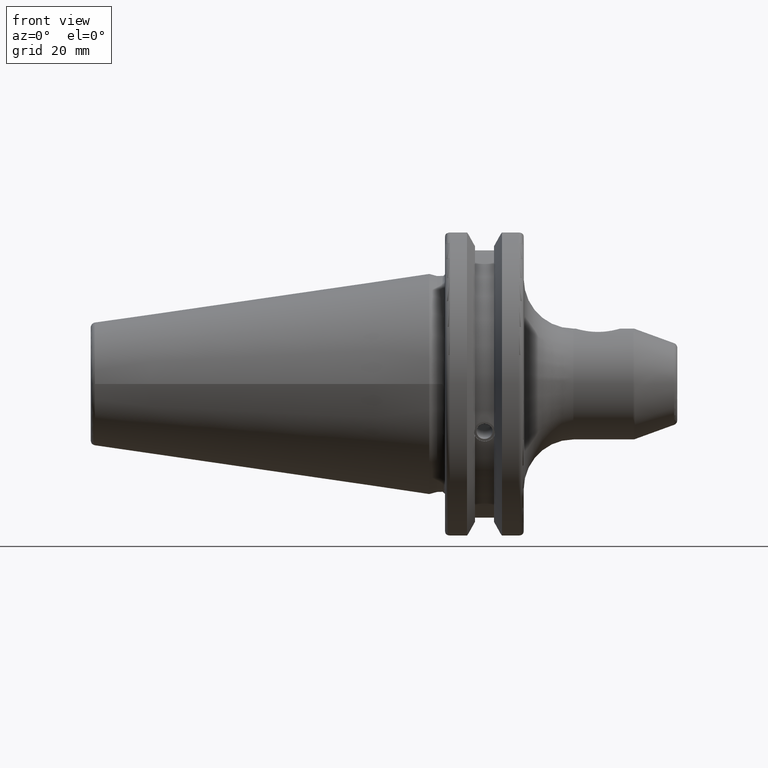
[diagram: clean part render]
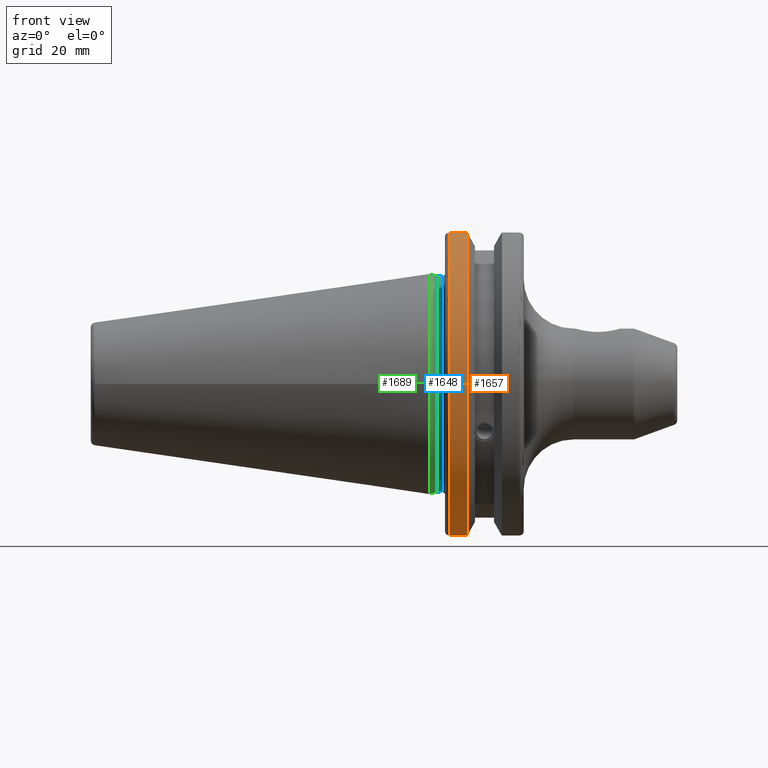
[diagram: same view with three faces highlighted in distinct colors, each labeled with its STEP entity id]
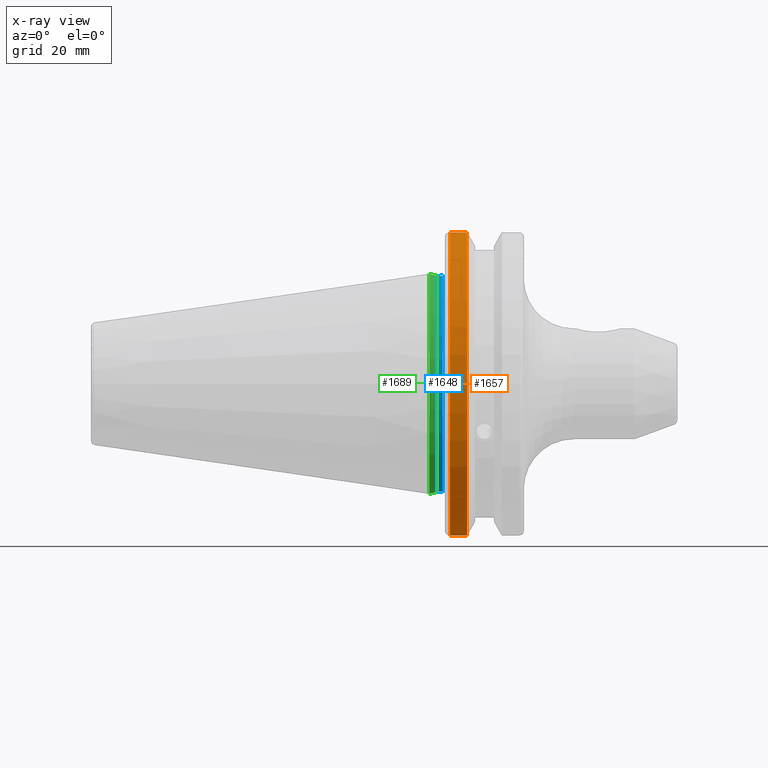
[diagram: x-ray of the same camera — body ghosted, the three highlighted faces saturated]
A machine part, front view with three faces highlighted in distinct colors.
The next image is the same camera in x-ray (body ghosted, the three faces saturated) — at least one of them is partly hidden behind the body in this view.
Their STEP definitions:

[orange] entity #1657 — the highlighted cylindrical surface (partial cylindrical patch) has radius 31.75 mm, axis along (1, 0, 0).
#155=CIRCLE('',#1847,31.75);
#156=CIRCLE('',#1850,31.75);
#240=FACE_OUTER_BOUND('',#346,.T.);
#346=EDGE_LOOP('',(#1413,#1414,#1415,#1416));
#460=LINE('',#3256,#559);
#461=LINE('',#3262,#560);
#559=VECTOR('',#2249,10.);
#560=VECTOR('',#2252,10.);
#789=VERTEX_POINT('',#3235);
#790=VERTEX_POINT('',#3244);
#791=VERTEX_POINT('',#3255);
#792=VERTEX_POINT('',#3261);
#1013=EDGE_CURVE('',#789,#790,#155,.T.);
#1015=EDGE_CURVE('',#790,#791,#460,.T.);
#1017=EDGE_CURVE('',#792,#789,#461,.T.);
#1018=EDGE_CURVE('',#791,#792,#156,.T.);
#1413=ORIENTED_EDGE('',*,*,#1013,.F.);
#1414=ORIENTED_EDGE('',*,*,#1017,.F.);
#1415=ORIENTED_EDGE('',*,*,#1018,.F.);
#1416=ORIENTED_EDGE('',*,*,#1015,.F.);
#1593=CYLINDRICAL_SURFACE('',#1849,31.75);
#1657=ADVANCED_FACE('',(#240),#1593,.T.);
#1847=AXIS2_PLACEMENT_3D('',#3245,#2245,#2246);
#1849=AXIS2_PLACEMENT_3D('',#3260,#2250,#2251);
#1850=AXIS2_PLACEMENT_3D('',#3263,#2253,#2254);
#2245=DIRECTION('center_axis',(-1.,0.,0.));
#2246=DIRECTION('ref_axis',(0.,-1.,1.60812264967664E-16));
#2249=DIRECTION('',(1.,0.,0.));
#2250=DIRECTION('center_axis',(1.,0.,0.));
#2251=DIRECTION('ref_axis',(0.,-1.,1.22464679914735E-16));
#2252=DIRECTION('',(-1.,0.,0.));
#2253=DIRECTION('center_axis',(1.,0.,0.));
#2254=DIRECTION('ref_axis',(0.,0.,-1.));
#3235=CARTESIAN_POINT('',(4.175,-8.67204822802685,-30.5427254764662));
#3244=CARTESIAN_POINT('',(4.175,-8.67204822802685,30.5427254764662));
#3245=CARTESIAN_POINT('Origin',(4.175,0.,0.));
#3255=CARTESIAN_POINT('',(7.60793323092436,-8.67204822802685,30.5427254764662));
#3256=CARTESIAN_POINT('',(5.39146661546218,-8.67204822802685,30.5427254764662));
#3260=CARTESIAN_POINT('Origin',(5.39146661546218,0.,0.));
#3261=CARTESIAN_POINT('',(7.60793323092436,-8.67204822802685,-30.5427254764662));
#3262=CARTESIAN_POINT('',(5.39146661546218,-8.67204822802685,-30.5427254764662));
#3263=CARTESIAN_POINT('Origin',(7.60793323092436,0.,0.));

[blue] entity #1648 — the highlighted cylindrical surface (bore or boss wall) has radius 21.8 mm, axis along (1, 0, 0).
#146=CIRCLE('',#1829,21.8);
#149=CIRCLE('',#1832,21.8);
#152=CIRCLE('',#1837,21.8);
#231=FACE_OUTER_BOUND('',#337,.T.);
#337=EDGE_LOOP('',(#1346,#1347,#1348,#1349,#1350));
#446=LINE('',#3107,#545);
#545=VECTOR('',#2211,21.8);
#755=VERTEX_POINT('',#3073);
#756=VERTEX_POINT('',#3074);
#770=VERTEX_POINT('',#3106);
#964=EDGE_CURVE('',#755,#756,#146,.T.);
#967=EDGE_CURVE('',#756,#755,#149,.T.);
#980=EDGE_CURVE('',#755,#770,#446,.T.);
#981=EDGE_CURVE('',#770,#770,#152,.T.);
#1346=ORIENTED_EDGE('',*,*,#964,.F.);
#1347=ORIENTED_EDGE('',*,*,#980,.T.);
#1348=ORIENTED_EDGE('',*,*,#981,.T.);
#1349=ORIENTED_EDGE('',*,*,#980,.F.);
#1350=ORIENTED_EDGE('',*,*,#967,.F.);
#1592=CYLINDRICAL_SURFACE('',#1836,21.8);
#1648=ADVANCED_FACE('',(#231),#1592,.T.);
#1829=AXIS2_PLACEMENT_3D('',#3075,#2185,#2186);
#1832=AXIS2_PLACEMENT_3D('',#3079,#2191,#2192);
#1836=AXIS2_PLACEMENT_3D('',#3105,#2209,#2210);
#1837=AXIS2_PLACEMENT_3D('',#3108,#2212,#2213);
#2185=DIRECTION('center_axis',(1.,0.,0.));
#2186=DIRECTION('ref_axis',(0.,-1.,1.83697019872103E-16));
#2191=DIRECTION('center_axis',(1.,0.,0.));
#2192=DIRECTION('ref_axis',(0.,-1.,1.83697019872103E-16));
#2209=DIRECTION('center_axis',(1.,0.,0.));
#2210=DIRECTION('ref_axis',(0.,1.,0.));
#2211=DIRECTION('',(-1.,0.,0.));
#2212=DIRECTION('center_axis',(1.,0.,0.));
#2213=DIRECTION('ref_axis',(0.,0.,-1.));
#3073=CARTESIAN_POINT('',(2.675,-21.8,-2.66973002214123E-15));
#3074=CARTESIAN_POINT('',(2.675,-2.66973002214123E-15,21.8));
#3075=CARTESIAN_POINT('Origin',(2.675,0.,0.));
#3079=CARTESIAN_POINT('Origin',(2.675,0.,0.));
#3105=CARTESIAN_POINT('Origin',(2.38056079660838,0.,0.));
#3106=CARTESIAN_POINT('',(1.58612159321676,-21.8,-2.66973002214123E-15));
#3107=CARTESIAN_POINT('',(2.38056079660838,-21.8,-2.66973002214123E-15));
#3108=CARTESIAN_POINT('Origin',(1.58612159321676,0.,0.));

[green] entity #1689 — the highlighted conical surface has half-angle 15 deg.
#44=CONICAL_SURFACE('',#1899,22.0125,0.261799387799148);
#152=CIRCLE('',#1837,21.8);
#163=CIRCLE('',#1863,22.225);
#272=FACE_OUTER_BOUND('',#381,.T.);
#381=EDGE_LOOP('',(#1554,#1555,#1556,#1557));
#482=LINE('',#3382,#581);
#581=VECTOR('',#2373,22.0125);
#770=VERTEX_POINT('',#3106);
#800=VERTEX_POINT('',#3309);
#981=EDGE_CURVE('',#770,#770,#152,.T.);
#1030=EDGE_CURVE('',#800,#800,#163,.T.);
#1062=EDGE_CURVE('',#770,#800,#482,.T.);
#1554=ORIENTED_EDGE('',*,*,#981,.F.);
#1555=ORIENTED_EDGE('',*,*,#1062,.T.);
#1556=ORIENTED_EDGE('',*,*,#1030,.T.);
#1557=ORIENTED_EDGE('',*,*,#1062,.F.);
#1689=ADVANCED_FACE('',(#272),#44,.T.);
#1837=AXIS2_PLACEMENT_3D('',#3108,#2212,#2213);
#1863=AXIS2_PLACEMENT_3D('',#3310,#2280,#2281);
#1899=AXIS2_PLACEMENT_3D('',#3381,#2371,#2372);
#2212=DIRECTION('center_axis',(1.,0.,0.));
#2213=DIRECTION('ref_axis',(0.,0.,-1.));
#2280=DIRECTION('center_axis',(1.,0.,0.));
#2281=DIRECTION('ref_axis',(0.,0.,-1.));
#2371=DIRECTION('center_axis',(-1.,0.,0.));
#2372=DIRECTION('ref_axis',(0.,1.,0.));
#2373=DIRECTION('',(-0.965925826289069,-0.258819045102519,-3.16961915143175E-17));
#3106=CARTESIAN_POINT('',(1.58612159321676,-21.8,-2.66973002214123E-15));
#3108=CARTESIAN_POINT('Origin',(1.58612159321676,0.,0.));
#3309=CARTESIAN_POINT('',(0.,-22.225,-2.72177751110499E-15));
#3310=CARTESIAN_POINT('Origin',(0.,0.,0.));
#3381=CARTESIAN_POINT('Origin',(0.793060796608382,0.,0.));
#3382=CARTESIAN_POINT('',(0.793060796608382,-22.0125,-2.69575376662311E-15));